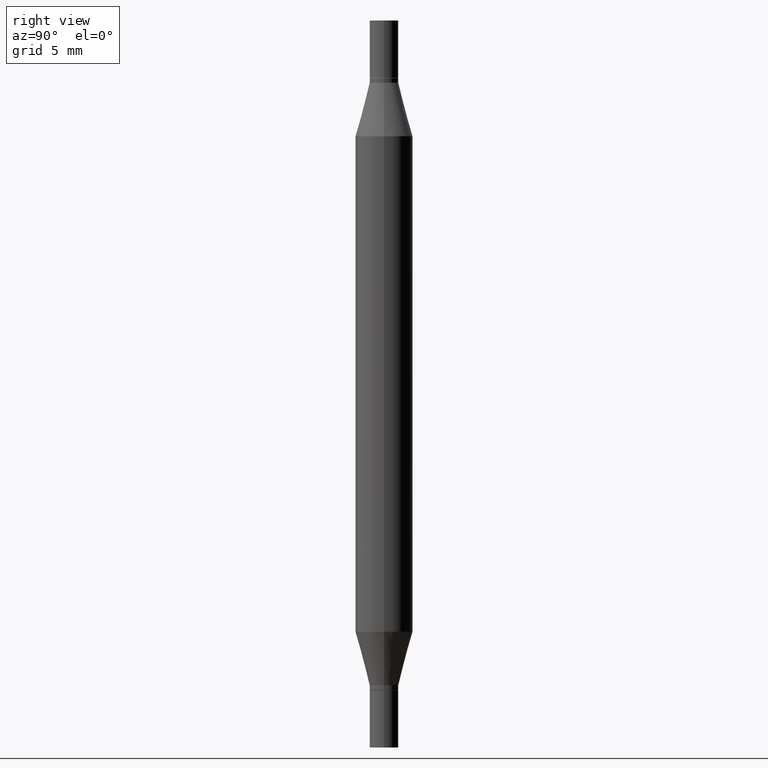
[diagram: clean part render]
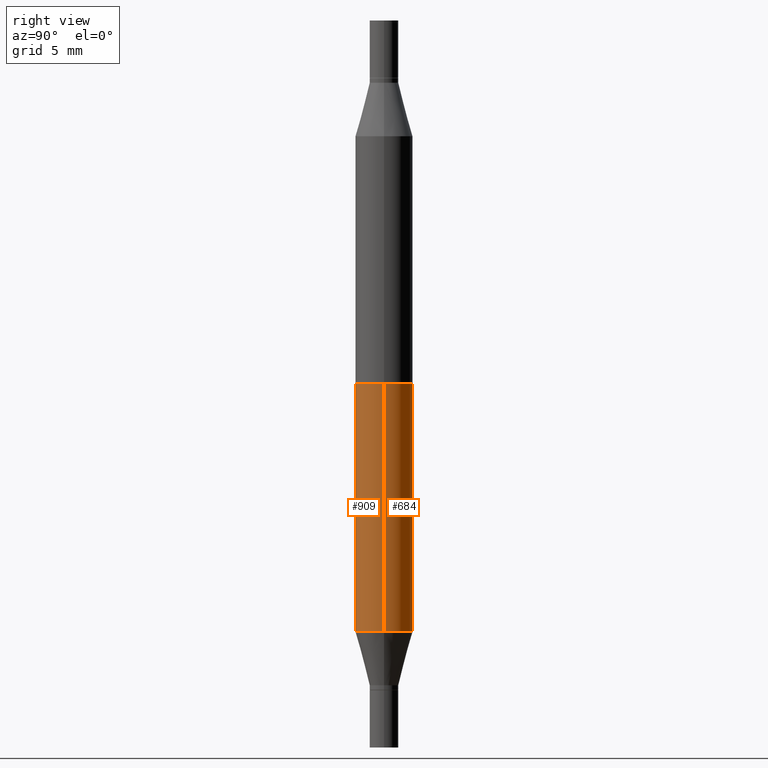
[diagram: same view with one multi-face feature highlighted, each face labeled with its STEP entity id]
A machine part, right view. The highlighted faces form ONE feature: a constant-radius fillet chain: 2 tangent blend faces with common blend radius 1.4999 mm. The faces share edges in the B-rep.
Their STEP definitions:
[1] entity #909 (Cylinder):
#4 = FACE_OUTER_BOUND ( 'NONE', #806, .T. ) ;
#76 = ORIENTED_EDGE ( 'NONE', *, *, #793, .T. ) ;
#77 = CARTESIAN_POINT ( 'NONE',  ( 0.05905000000000000526, -5.636191362924657961E-15, -1.496099999999999985 ) ) ;
#131 = AXIS2_PLACEMENT_3D ( 'NONE', #515, #310, #822 ) ;
#135 = VERTEX_POINT ( 'NONE', #628 ) ;
#182 = CIRCLE ( 'NONE', #925, 0.05904999999999999832 ) ;
#195 = CARTESIAN_POINT ( 'NONE',  ( 3.076410765668156654E-29, -4.392299240039190746E-15, -1.258004501176717804 ) ) ;
#206 = ORIENTED_EDGE ( 'NONE', *, *, #857, .F. ) ;
#208 = DIRECTION ( 'NONE',  ( 2.445468806185136597E-29, 3.491805094961124077E-15, 1.000000000000000000 ) ) ;
#221 = CYLINDRICAL_SURFACE ( 'NONE', #131, 0.05905000000000000526 ) ;
#282 = CIRCLE ( 'NONE', #646, 0.05904999999999999832 ) ;
#283 = ORIENTED_EDGE ( 'NONE', *, *, #373, .F. ) ;
#305 = CARTESIAN_POINT ( 'NONE',  ( -0.05905000000000000526, -4.818735010038875060E-15, -1.496099999999999985 ) ) ;
#310 = DIRECTION ( 'NONE',  ( -2.445468806185136597E-29, -3.491805094961124077E-15, -1.000000000000000000 ) ) ;
#354 = CARTESIAN_POINT ( 'NONE',  ( -0.05904999999999999832, -4.260284833459836245E-16, -0.2380954988232820146 ) ) ;
#373 = EDGE_CURVE ( 'NONE', #390, #135, #282, .T. ) ;
#380 = DIRECTION ( 'NONE',  ( -2.445468806185136877E-29, -3.491805094961123683E-15, -1.000000000000000000 ) ) ;
#384 = EDGE_CURVE ( 'NONE', #582, #879, #182, .T. ) ;
#385 = LINE ( 'NONE', #77, #389 ) ;
#389 = VECTOR ( 'NONE', #380, 39.37007874015748143 ) ;
#390 = VERTEX_POINT ( 'NONE', #354 ) ;
#418 = DIRECTION ( 'NONE',  ( 1.000000000000000000, -6.982962677686265133E-15, 0.000000000000000000 ) ) ;
#458 = CARTESIAN_POINT ( 'NONE',  ( 3.076410765668156654E-29, -8.311408901143919011E-16, -0.2380954988232820146 ) ) ;
#495 = DIRECTION ( 'NONE',  ( -2.445468806185136597E-29, 3.491481338843145583E-15, 1.000000000000000000 ) ) ;
#515 = CARTESIAN_POINT ( 'NONE',  ( 0.000000000000000000, -5.223847416807283040E-15, -1.496099999999999985 ) ) ;
#553 = VECTOR ( 'NONE', #834, 39.37007874015748143 ) ;
#582 = VERTEX_POINT ( 'NONE', #841 ) ;
#628 = CARTESIAN_POINT ( 'NONE',  ( 0.05904999999999999832, -1.243484836231766624E-15, -0.2380954988232820146 ) ) ;
#646 = AXIS2_PLACEMENT_3D ( 'NONE', #458, #208, #418 ) ;
#679 = CARTESIAN_POINT ( 'NONE',  ( 0.05904999999999999832, -4.804643186156564878E-15, -1.258004501176717804 ) ) ;
#718 = DIRECTION ( 'NONE',  ( 1.000000000000000000, -6.982962677686273021E-15, 0.000000000000000000 ) ) ;
#742 = LINE ( 'NONE', #305, #553 ) ;
#793 = EDGE_CURVE ( 'NONE', #390, #582, #742, .T. ) ;
#806 = EDGE_LOOP ( 'NONE', ( #283, #76, #937, #206 ) ) ;
#822 = DIRECTION ( 'NONE',  ( 1.000000000000000000, -6.982962677686272233E-15, 0.000000000000000000 ) ) ;
#834 = DIRECTION ( 'NONE',  ( -2.445468806185136877E-29, -3.491805094961123683E-15, -1.000000000000000000 ) ) ;
#841 = CARTESIAN_POINT ( 'NONE',  ( -0.05904999999999999832, -2.206690208753205272E-15, -1.258004501176717804 ) ) ;
#857 = EDGE_CURVE ( 'NONE', #135, #879, #385, .T. ) ;
#879 = VERTEX_POINT ( 'NONE', #679 ) ;
#909 = ADVANCED_FACE ( 'NONE', ( #4 ), #221, .T. ) ;
#925 = AXIS2_PLACEMENT_3D ( 'NONE', #195, #495, #718 ) ;
#937 = ORIENTED_EDGE ( 'NONE', *, *, #384, .T. ) ;
[2] entity #684 (Cylinder):
#20 = EDGE_LOOP ( 'NONE', ( #344, #487, #167, #321 ) ) ;
#48 = DIRECTION ( 'NONE',  ( -2.445468806185136597E-29, 3.491481338843145583E-15, 1.000000000000000000 ) ) ;
#55 = CARTESIAN_POINT ( 'NONE',  ( 0.000000000000000000, -5.223847416807283040E-15, -1.496099999999999985 ) ) ;
#77 = CARTESIAN_POINT ( 'NONE',  ( 0.05905000000000000526, -5.636191362924657961E-15, -1.496099999999999985 ) ) ;
#110 = DIRECTION ( 'NONE',  ( 1.000000000000000000, -6.982962677686265133E-15, 0.000000000000000000 ) ) ;
#114 = FACE_OUTER_BOUND ( 'NONE', #20, .T. ) ;
#121 = CARTESIAN_POINT ( 'NONE',  ( 3.076410765668156654E-29, -8.311408901143919011E-16, -0.2380954988232820146 ) ) ;
#135 = VERTEX_POINT ( 'NONE', #628 ) ;
#167 = ORIENTED_EDGE ( 'NONE', *, *, #857, .T. ) ;
#197 = CARTESIAN_POINT ( 'NONE',  ( 3.076410765668156654E-29, -4.392299240039190746E-15, -1.258004501176717804 ) ) ;
#218 = CIRCLE ( 'NONE', #622, 0.05904999999999999832 ) ;
#271 = CYLINDRICAL_SURFACE ( 'NONE', #468, 0.05905000000000000526 ) ;
#305 = CARTESIAN_POINT ( 'NONE',  ( -0.05905000000000000526, -4.818735010038875060E-15, -1.496099999999999985 ) ) ;
#321 = ORIENTED_EDGE ( 'NONE', *, *, #453, .T. ) ;
#344 = ORIENTED_EDGE ( 'NONE', *, *, #793, .F. ) ;
#354 = CARTESIAN_POINT ( 'NONE',  ( -0.05904999999999999832, -4.260284833459836245E-16, -0.2380954988232820146 ) ) ;
#359 = DIRECTION ( 'NONE',  ( 2.445468806185136597E-29, 3.491805094961124077E-15, 1.000000000000000000 ) ) ;
#380 = DIRECTION ( 'NONE',  ( -2.445468806185136877E-29, -3.491805094961123683E-15, -1.000000000000000000 ) ) ;
#385 = LINE ( 'NONE', #77, #389 ) ;
#389 = VECTOR ( 'NONE', #380, 39.37007874015748143 ) ;
#390 = VERTEX_POINT ( 'NONE', #354 ) ;
#453 = EDGE_CURVE ( 'NONE', #879, #582, #218, .T. ) ;
#468 = AXIS2_PLACEMENT_3D ( 'NONE', #55, #559, #954 ) ;
#484 = AXIS2_PLACEMENT_3D ( 'NONE', #121, #359, #110 ) ;
#487 = ORIENTED_EDGE ( 'NONE', *, *, #672, .F. ) ;
#553 = VECTOR ( 'NONE', #834, 39.37007874015748143 ) ;
#559 = DIRECTION ( 'NONE',  ( -2.445468806185136597E-29, -3.491805094961124077E-15, -1.000000000000000000 ) ) ;
#582 = VERTEX_POINT ( 'NONE', #841 ) ;
#622 = AXIS2_PLACEMENT_3D ( 'NONE', #197, #48, #795 ) ;
#628 = CARTESIAN_POINT ( 'NONE',  ( 0.05904999999999999832, -1.243484836231766624E-15, -0.2380954988232820146 ) ) ;
#672 = EDGE_CURVE ( 'NONE', #135, #390, #860, .T. ) ;
#679 = CARTESIAN_POINT ( 'NONE',  ( 0.05904999999999999832, -4.804643186156564878E-15, -1.258004501176717804 ) ) ;
#684 = ADVANCED_FACE ( 'NONE', ( #114 ), #271, .T. ) ;
#742 = LINE ( 'NONE', #305, #553 ) ;
#793 = EDGE_CURVE ( 'NONE', #390, #582, #742, .T. ) ;
#795 = DIRECTION ( 'NONE',  ( 1.000000000000000000, -6.982962677686273021E-15, 0.000000000000000000 ) ) ;
#834 = DIRECTION ( 'NONE',  ( -2.445468806185136877E-29, -3.491805094961123683E-15, -1.000000000000000000 ) ) ;
#841 = CARTESIAN_POINT ( 'NONE',  ( -0.05904999999999999832, -2.206690208753205272E-15, -1.258004501176717804 ) ) ;
#857 = EDGE_CURVE ( 'NONE', #135, #879, #385, .T. ) ;
#860 = CIRCLE ( 'NONE', #484, 0.05904999999999999832 ) ;
#879 = VERTEX_POINT ( 'NONE', #679 ) ;
#954 = DIRECTION ( 'NONE',  ( 1.000000000000000000, -6.982962677686272233E-15, 0.000000000000000000 ) ) ;